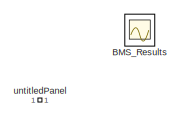
[diagram: root canvas - part 1/2, top left region]
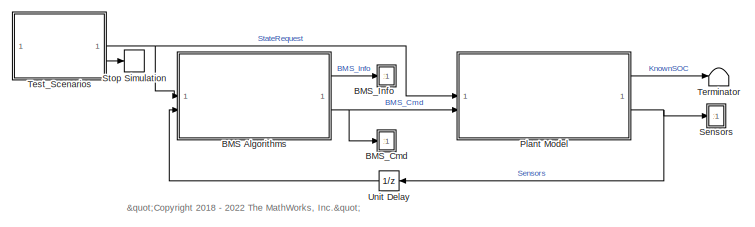
[diagram: root canvas - part 2/2, bottom right region]
MODEL slx_3083bf6f51df
KIND model
CONFIG AbsTol = auto
CONFIG EnableMultiTasking = off
CONFIG FixedStep = auto
CONFIG MaxStep = auto
CONFIG MinStep = auto
CONFIG RelTol = 1e-3
CONFIG SampleTimeConstraint = Unconstrained
CONFIG SolverName = FixedStepDiscrete
CONFIG StartTime = 0.0
CONFIG StopTime = 5000
BLOCK [ModelReference] BMS Algorithms
  ModelNameDialog = BMS_Software
  ModelReferenceVersion = 5.15
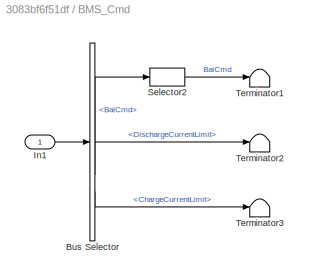
BLOCK [SubSystem] BMS_Cmd
  ShowPortLabels = none
BLOCK [BusSelector] BMS_Cmd/Bus Selector
  OutputSignals = BalCmd,CurrentLimits_Bus.DischargeCurrentLimit,CurrentLimits_Bus.ChargeCurrentLimit
BLOCK [Inport] BMS_Cmd/In1
BLOCK [Selector] BMS_Cmd/Selector2
  IndexOptions = Index vector (dialog)
  Indices = [1:6]
  InputPortWidth = NumModules*Ns_Module
  OutputSizes = 1
BLOCK [Terminator] BMS_Cmd/Terminator1
BLOCK [Terminator] BMS_Cmd/Terminator2
BLOCK [Terminator] BMS_Cmd/Terminator3
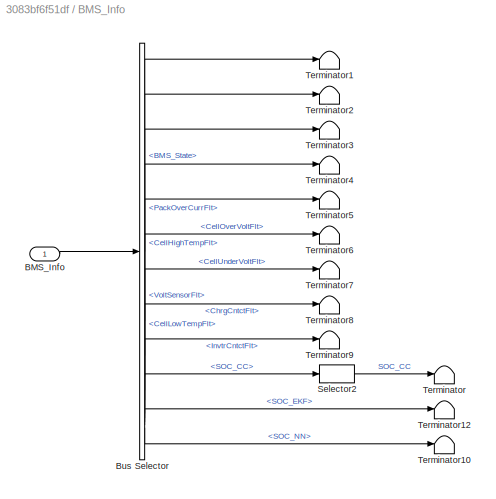
BLOCK [SubSystem] BMS_Info
  ShowPortLabels = none
BLOCK [Inport] BMS_Info/BMS_Info
BLOCK [BusSelector] BMS_Info/Bus Selector
  OutputSignals = BMS_State,Faults_Bus.PackOverCurrFlt,Faults_Bus.CellHighTempFlt,Faults_Bus.CellLowTempFlt,Faults_Bus.VoltSensorFlt,Faults_Bus.CellOverVoltFlt,Faults_Bus.CellUnderVoltFlt,Faults_Bus.ChrgCntctFlt,Faults_Bus.InvtrCntctFlt,SOC.SOC_CC,SOC.SOC_EKF,SOC_NN
BLOCK [Selector] BMS_Info/Selector2
  IndexOptions = Index vector (dialog)
  Indices = [1]
  InputPortWidth = NumModules*Ns_Module
  OutputSizes = 1
BLOCK [Terminator] BMS_Info/Terminator
BLOCK [Terminator] BMS_Info/Terminator1
BLOCK [Terminator] BMS_Info/Terminator10
BLOCK [Terminator] BMS_Info/Terminator12
BLOCK [Terminator] BMS_Info/Terminator2
BLOCK [Terminator] BMS_Info/Terminator3
BLOCK [Terminator] BMS_Info/Terminator4
BLOCK [Terminator] BMS_Info/Terminator5
BLOCK [Terminator] BMS_Info/Terminator6
BLOCK [Terminator] BMS_Info/Terminator7
BLOCK [Terminator] BMS_Info/Terminator8
BLOCK [Terminator] BMS_Info/Terminator9
BLOCK [Scope] BMS_Results
  Floating = off
  IOType = viewer
  NumInputPorts = 1
  ScopeSpecificationString = Simulink.scopes.TimeScopeBlockCfg('CurrentConfiguration', extmgr.ConfigurationSet(extmgr.Configuration('Core','General UI',true,'FigureColor',[0 0 0]),extmgr.Configuration('Core','Source UI',true),extmgr.Configuration('Sources','WiredSimulink',true,'DataLoggingVariableName','ScopeData2'),extmgr.Configuration('Visuals','Time Domain',true,'SerializedDisplays',{struct('MinYLimReal','-69.97503','MaxYL...<+11366ch>
BLOCK [ModelReference] Plant Model
  ModelNameDialog = Battery_Model
  ModelReferenceVersion = 7.38
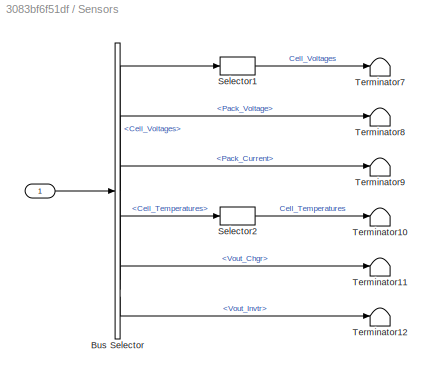
BLOCK [SubSystem] Sensors
BLOCK [Inport] Sensors/ 
BLOCK [BusSelector] Sensors/Bus Selector
  OutputSignals = Cell_Voltages,Pack_Voltage,Pack_Current,Cell_Temperatures,Vout_Chgr,Vout_Invtr
BLOCK [Selector] Sensors/Selector1
  IndexOptions = Index vector (dialog)
  Indices = [1:6]
  InputPortWidth = NumModules*Ns_Module
  OutputSizes = 1
BLOCK [Selector] Sensors/Selector2
  IndexOptions = Index vector (dialog)
  Indices = [1:6]
  InputPortWidth = NumModules*Ns_Module
  OutputSizes = 1
BLOCK [Terminator] Sensors/Terminator10
BLOCK [Terminator] Sensors/Terminator11
BLOCK [Terminator] Sensors/Terminator12
BLOCK [Terminator] Sensors/Terminator7
BLOCK [Terminator] Sensors/Terminator8
BLOCK [Terminator] Sensors/Terminator9
BLOCK [Stop] Stop Simulation
BLOCK [Terminator] Terminator
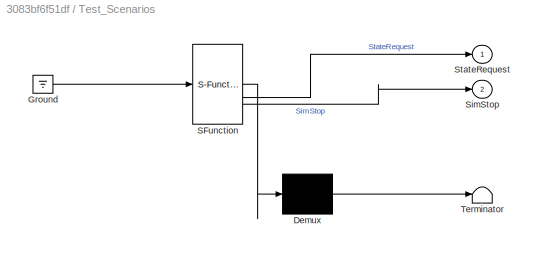
BLOCK [SubSystem] Test_Scenarios
  ErrorFcn = Stateflow.Translate.translate
  PermitHierarchicalResolution = ExplicitOnly
  SFBlockType = Test Sequence
  TreatAsAtomicUnit = on
  VariantControl = TestCase == 1
BLOCK [Demux] Test_Scenarios/ Demux 
  Outputs = 1
BLOCK [Ground] Test_Scenarios/ Ground 
BLOCK [S-Function] Test_Scenarios/ SFunction 
  EnableBusSupport = on
  FunctionName = sf_sfun
  Parameters = Active_Scenario_Index
  PortCounts = [1 3]
  SFcnIsStateOwnerBlock = off
  SFunctionDeploymentMode = off
  Tag = Stateflow S-Function 1
BLOCK [Terminator] Test_Scenarios/ Terminator 
BLOCK [Outport] Test_Scenarios/SimStop
  Port = 2
BLOCK [Outport] Test_Scenarios/StateRequest
  VectorParamsAs1DForOutWhenUnconnected = off
BLOCK [UnitDelay] Unit Delay
  HasFrameUpgradeWarning = on
  InitialCondition = struct('Cell_Voltages',3.6*ones(1, Ns_Module*NumModules),'Pack_Voltage',3.6*Ns_Module*NumModules,'Pack_Current',0,'Cell_Temperatures',25*ones(1,Ns_Module*NumModules),'Vout_Chgr',0,'Vout_Invtr',0)
  SampleTime = -1
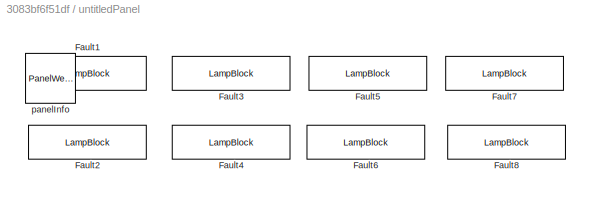
BLOCK [SubSystem] untitledPanel
  IsWebBlockPanel = on
  Tag = HiddenForWebPanel
BLOCK [LampBlock] untitledPanel/Fault1
  Icon = Circle
  PanelInfo = {"height":30,"left":15,"panelId":"panelId-4b766684-a2de-49ad-8df5-635bc51aef69","top":16,"type":"panelChild","version":"2019b","width":102,"zIndex":1500014}
  Tag = HiddenForWebPanel
BLOCK [LampBlock] untitledPanel/Fault2
  Icon = Circle
  PanelInfo = {"height":30,"left":15,"panelId":"panelId-4b766684-a2de-49ad-8df5-635bc51aef69","top":76,"type":"panelChild","version":"2019b","width":102,"zIndex":1500012}
  Tag = HiddenForWebPanel
BLOCK [LampBlock] untitledPanel/Fault3
  Icon = Circle
  PanelInfo = {"height":30,"left":140,"panelId":"panelId-4b766684-a2de-49ad-8df5-635bc51aef69","top":16,"type":"panelChild","version":"2019b","width":102,"zIndex":1500002}
  Tag = HiddenForWebPanel
BLOCK [LampBlock] untitledPanel/Fault4
  Icon = Circle
  PanelInfo = {"height":30,"left":140,"panelId":"panelId-4b766684-a2de-49ad-8df5-635bc51aef69","top":76,"type":"panelChild","version":"2019b","width":102,"zIndex":1500004}
  Tag = HiddenForWebPanel
BLOCK [LampBlock] untitledPanel/Fault5
  Icon = Circle
  PanelInfo = {"height":30,"left":259,"panelId":"panelId-4b766684-a2de-49ad-8df5-635bc51aef69","top":16,"type":"panelChild","version":"2019b","width":102,"zIndex":1500008}
  Tag = HiddenForWebPanel
BLOCK [LampBlock] untitledPanel/Fault6
  Icon = Circle
  PanelInfo = {"height":30,"left":258,"panelId":"panelId-4b766684-a2de-49ad-8df5-635bc51aef69","top":76,"type":"panelChild","version":"2019b","width":102,"zIndex":1500006}
  Tag = HiddenForWebPanel
BLOCK [LampBlock] untitledPanel/Fault7
  Icon = Circle
  PanelInfo = {"height":30,"left":378,"panelId":"panelId-4b766684-a2de-49ad-8df5-635bc51aef69","top":16,"type":"panelChild","version":"2019b","width":102,"zIndex":1500010}
  Tag = HiddenForWebPanel
BLOCK [LampBlock] untitledPanel/Fault8
  Icon = Circle
  PanelInfo = {"height":30,"left":380,"panelId":"panelId-4b766684-a2de-49ad-8df5-635bc51aef69","top":76,"type":"panelChild","version":"2019b","width":102,"zIndex":1500016}
  Tag = HiddenForWebPanel
BLOCK [PanelWebBlock] untitledPanel/panelInfo
  PanelInfo = {"compacted":false,"height":124,"isActiveTab":true,"labels":{},"left":320,"name":"Panel","panelId":"panelId-4b766684-a2de-49ad-8df5-635bc51aef69","tabIndex":0,"tabbedSetId":"tabbedSet9399756491","top":16,"type":"panel","version":"2019b","visible":true,"width":501,"zIndex":1500002}
  PanelSnapshot = iVBORw0KGgoAAAANSUhEUgAAAfAAAAB3CAYAAAD8bhIyAAAACXBIWXMAAA7EAAAOxAGVKw4bAAAgAElEQVR4nO3deVhTZ74H8DcbgSRkB0VANpFNFEUELQJa4NpWtO3tONrFihZbxoVRx7UW9VrrgEUUi1aqRUZxaSu1U+9UaIs76giihkVQtqIUCGQ3AbLdP6bhpinkhJ0kv8/z+DxCTs77nvN93/NLzgknuCatthgBAAAAwKzgR7oDAAAAAOg7KOAAAACAGYICDgAAAJghKOAAAACAGYICDgAAAJghKOAAAACAGYICDgAAAJghKOAAAACAGYICDgAAAJghKOAAAACAGYICDgAAAJghKOAAAACAGYICDgAAAJghKOAAAACAGYICbqaUSiVOq9WO...<+11876ch>
  Tag = HiddenForWebPanel
ANNOTATION (root): "<copyright redacted>
LINE BMS Algorithms:1 -> BMS_Info:1
NET BMS Algorithms:2 -> BMS_Cmd:1, Plant Model:2
LINE BMS_Cmd/Bus Selector:1 -> BMS_Cmd/Selector2:1
LINE BMS_Cmd/Bus Selector:2 -> BMS_Cmd/Terminator2:1
LINE BMS_Cmd/Bus Selector:3 -> BMS_Cmd/Terminator3:1
LINE BMS_Cmd/In1:1 -> BMS_Cmd/Bus Selector:1
LINE BMS_Cmd/Selector2:1 -> BMS_Cmd/Terminator1:1
LINE BMS_Info/BMS_Info:1 -> BMS_Info/Bus Selector:1
LINE BMS_Info/Bus Selector:1 -> BMS_Info/Terminator1:1
LINE BMS_Info/Bus Selector:10 -> BMS_Info/Selector2:1
LINE BMS_Info/Bus Selector:11 -> BMS_Info/Terminator12:1
LINE BMS_Info/Bus Selector:12 -> BMS_Info/Terminator10:1
LINE BMS_Info/Bus Selector:2 -> BMS_Info/Terminator2:1
LINE BMS_Info/Bus Selector:3 -> BMS_Info/Terminator3:1
LINE BMS_Info/Bus Selector:4 -> BMS_Info/Terminator4:1
LINE BMS_Info/Bus Selector:5 -> BMS_Info/Terminator5:1
LINE BMS_Info/Bus Selector:6 -> BMS_Info/Terminator6:1
LINE BMS_Info/Bus Selector:7 -> BMS_Info/Terminator7:1
LINE BMS_Info/Bus Selector:8 -> BMS_Info/Terminator8:1
LINE BMS_Info/Bus Selector:9 -> BMS_Info/Terminator9:1
LINE BMS_Info/Selector2:1 -> BMS_Info/Terminator:1
LINE Plant Model:1 -> Terminator:1
NET Plant Model:2 -> Sensors:1, Unit Delay:1
LINE Sensors/ :1 -> Sensors/Bus Selector:1
LINE Sensors/Bus Selector:1 -> Sensors/Selector1:1
LINE Sensors/Bus Selector:2 -> Sensors/Terminator8:1
LINE Sensors/Bus Selector:3 -> Sensors/Terminator9:1
LINE Sensors/Bus Selector:4 -> Sensors/Selector2:1
LINE Sensors/Bus Selector:5 -> Sensors/Terminator11:1
LINE Sensors/Bus Selector:6 -> Sensors/Terminator12:1
LINE Sensors/Selector1:1 -> Sensors/Terminator7:1
LINE Sensors/Selector2:1 -> Sensors/Terminator10:1
NET Test_Scenarios:1 -> BMS Algorithms:1, Plant Model:1
LINE Test_Scenarios:2 -> Stop Simulation:1
LINE Unit Delay:1 -> BMS Algorithms:2
note: NET lines group one-source signal fan-out (src -> all destinations, sorted); 1:1 wires keep LINE
CHART Test_Scenarios states=13 transitions=13
  STATE_LABEL 'Driving_Charging_Rest'
  STATE_LABEL 'Driving\nStateRequest = SRE.Driving;\nSimStop = false;'
  STATE_LABEL 'Charging\nStateRequest = SRE.Charging;'
  STATE_LABEL 'Balancing\nStateRequest = SRE.Standby;'
  STATE_LABEL 'Stop\nSimStop = true;'
  STATE_LABEL '[\nafter(2700,sec)\n]'
  STATE_LABEL '[\nafter(1800,sec)\n]'
  STATE_LABEL '[\nafter(500,sec)\n]'
  STATE_LABEL 'Driving\nStateRequest = SRE.Driving;\nSimStop = false;'
  STATE_LABEL 'Charging\nStateRequest = SRE.Charging;'
  STATE_LABEL 'Balancing\nStateRequest = SRE.Standby;'
  STATE_LABEL 'Stop\nSimStop = true;'
  STATE_LABEL 'Charging'
  STATE_LABEL 'Charging\nStateRequest = SRE.Charging;\nSimStop = false;'
  STATE_LABEL 'Balancing\nStateRequest = SRE.Standby;'
  STATE_LABEL 'Stop\nSimStop = true;'
  STATE_LABEL '[\nafter(4200,sec)\n]'
  STATE_LABEL '[\nafter(1800,sec)\n]'
  STATE_LABEL 'Charging\nStateRequest = SRE.Charging;\nSimStop = false;'
  STATE_LABEL 'Balancing\nStateRequest = SRE.Standby;'
  STATE_LABEL 'Stop\nSimStop = true;'
  STATE_LABEL 'Driving'
  STATE_LABEL 'Driving\nStateRequest = SRE.Driving;\nSimStop = false;'
  STATE_LABEL 'Balancing\nStateRequest = SRE.Standby;'
  STATE_LABEL 'Stop\nSimStop = true;'
  STATE_LABEL '[\nafter(8200,sec)\n]'
  STATE_LABEL '[\nafter(1500,sec)\n]'
  STATE_LABEL 'Driving\nStateRequest = SRE.Driving;\nSimStop = false;'
  STATE_LABEL 'Balancing\nStateRequest = SRE.Standby;'
  STATE_LABEL 'Stop\nSimStop = true;'
